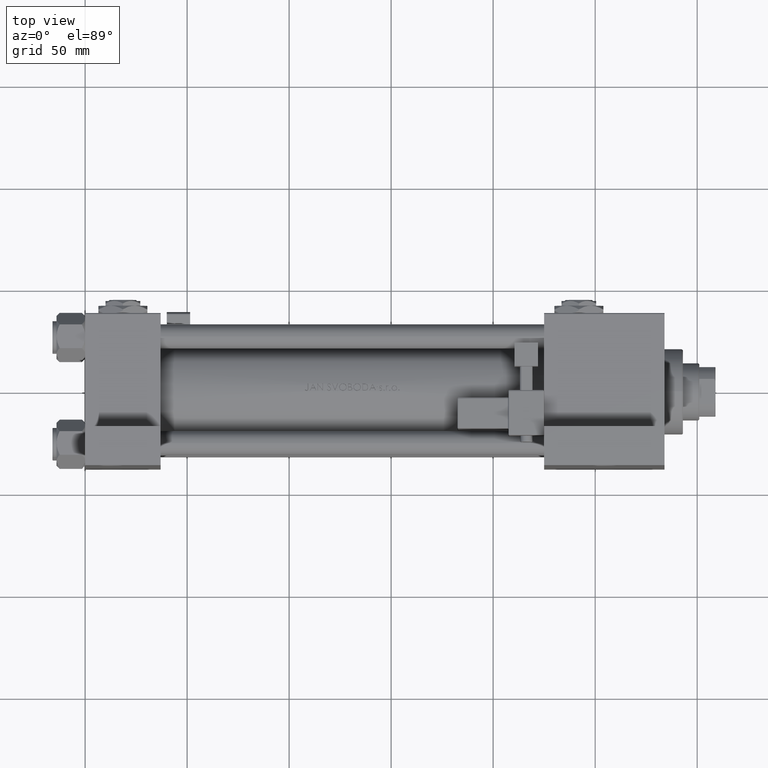
[diagram: clean part render]
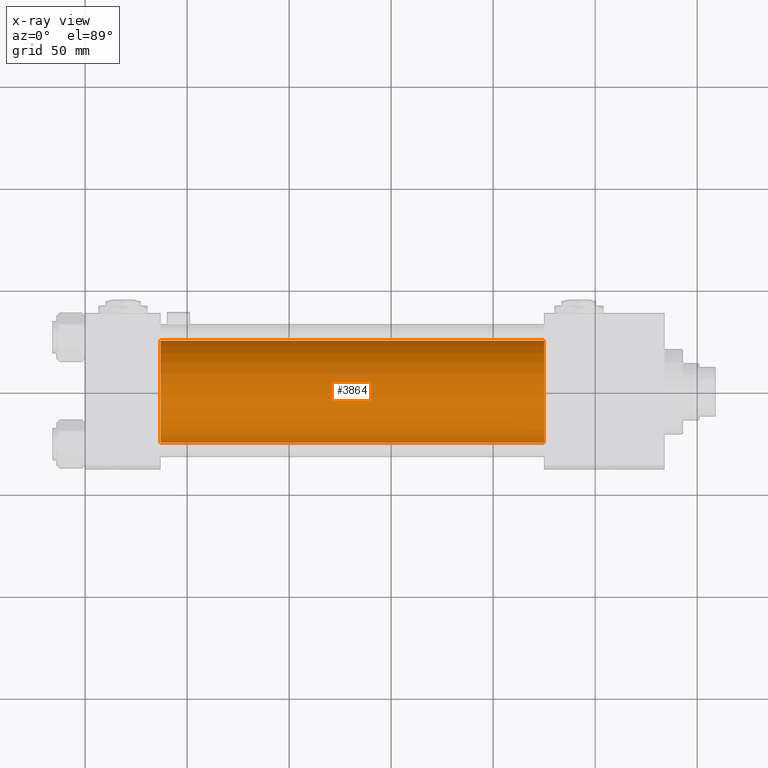
[diagram: x-ray — body ghosted, one internal face saturated and labeled with its STEP entity id]
A machine part, top view, then the same camera in x-ray: the body is ghosted and one INTERNAL B-rep face — a face not visible from any outside direction — is saturated and labeled: STEP entity #3864.
In plain terms, the highlighted cylindrical surface (partial cylindrical patch) has radius 25 mm, axis along (-1, -0, 0).
Its self-contained STEP definition (entity closure, byte-faithful):
#147 = DIRECTION ( 'NONE',  ( -1.000000000000000000, -0.000000000000000000, -0.000000000000000000 ) ) ;
#2550 = CIRCLE ( 'NONE', #31489, 25.00000000000000000 ) ;
#3864 = ADVANCED_FACE ( 'NONE', ( #28356 ), #31213, .F. ) ;
#4753 = VERTEX_POINT ( 'NONE', #13571 ) ;
#5477 = CARTESIAN_POINT ( 'NONE',  ( 225.0000000000000000, 0.000000000000000000, -0.5000000000000004441 ) ) ;
#6896 = VECTOR ( 'NONE', #36809, 1000.000000000000000 ) ;
#7778 = EDGE_CURVE ( 'NONE', #11656, #36439, #17606, .T. ) ;
#8599 = CARTESIAN_POINT ( 'NONE',  ( 225.0000000000000000, 0.000000000000000000, 24.50000000000000000 ) ) ;
#11656 = VERTEX_POINT ( 'NONE', #8599 ) ;
#11888 = CARTESIAN_POINT ( 'NONE',  ( 37.00000000000000000, 0.000000000000000000, -0.5000000000000004441 ) ) ;
#12127 = EDGE_CURVE ( 'NONE', #43550, #4753, #23759, .T. ) ;
#13571 = CARTESIAN_POINT ( 'NONE',  ( 37.00000000000000000, 3.061616997868383043E-15, -25.50000000000000355 ) ) ;
#14636 = EDGE_LOOP ( 'NONE', ( #37339, #42501, #21990, #43272 ) ) ;
#17606 = LINE ( 'NONE', #20977, #6896 ) ;
#17903 = DIRECTION ( 'NONE',  ( 1.000000000000000000, 0.000000000000000000, 0.000000000000000000 ) ) ;
#18652 = AXIS2_PLACEMENT_3D ( 'NONE', #11888, #35731, #20171 ) ;
#19837 = CARTESIAN_POINT ( 'NONE',  ( 225.0000000000000000, 3.061616997868383043E-15, -25.50000000000000355 ) ) ;
#20171 = DIRECTION ( 'NONE',  ( 0.000000000000000000, 0.000000000000000000, -1.000000000000000000 ) ) ;
#20977 = CARTESIAN_POINT ( 'NONE',  ( 225.0000000000000000, 0.000000000000000000, 24.50000000000000000 ) ) ;
#21990 = ORIENTED_EDGE ( 'NONE', *, *, #26611, .F. ) ;
#23759 = LINE ( 'NONE', #19837, #45101 ) ;
#23866 = CARTESIAN_POINT ( 'NONE',  ( 37.00000000000000000, 0.000000000000000000, 24.50000000000000000 ) ) ;
#26611 = EDGE_CURVE ( 'NONE', #36439, #4753, #31091, .T. ) ;
#28356 = FACE_OUTER_BOUND ( 'NONE', #14636, .T. ) ;
#31091 = CIRCLE ( 'NONE', #18652, 25.00000000000000000 ) ;
#31213 = CYLINDRICAL_SURFACE ( 'NONE', #32375, 25.00000000000000000 ) ;
#31489 = AXIS2_PLACEMENT_3D ( 'NONE', #5477, #17903, #41495 ) ;
#31706 = DIRECTION ( 'NONE',  ( -1.000000000000000000, -0.000000000000000000, -0.000000000000000000 ) ) ;
#32375 = AXIS2_PLACEMENT_3D ( 'NONE', #43362, #31706, #47495 ) ;
#35731 = DIRECTION ( 'NONE',  ( 1.000000000000000000, 0.000000000000000000, 0.000000000000000000 ) ) ;
#36439 = VERTEX_POINT ( 'NONE', #23866 ) ;
#36809 = DIRECTION ( 'NONE',  ( -1.000000000000000000, -0.000000000000000000, -0.000000000000000000 ) ) ;
#37339 = ORIENTED_EDGE ( 'NONE', *, *, #42181, .T. ) ;
#41495 = DIRECTION ( 'NONE',  ( 0.000000000000000000, 0.000000000000000000, -1.000000000000000000 ) ) ;
#42181 = EDGE_CURVE ( 'NONE', #11656, #43550, #2550, .T. ) ;
#42501 = ORIENTED_EDGE ( 'NONE', *, *, #12127, .T. ) ;
#42843 = CARTESIAN_POINT ( 'NONE',  ( 225.0000000000000000, 3.061616997868383043E-15, -25.50000000000000355 ) ) ;
#43272 = ORIENTED_EDGE ( 'NONE', *, *, #7778, .F. ) ;
#43362 = CARTESIAN_POINT ( 'NONE',  ( 225.0000000000000000, 0.000000000000000000, -0.5000000000000004441 ) ) ;
#43550 = VERTEX_POINT ( 'NONE', #42843 ) ;
#45101 = VECTOR ( 'NONE', #147, 1000.000000000000000 ) ;
#47495 = DIRECTION ( 'NONE',  ( 0.000000000000000000, 0.000000000000000000, 1.000000000000000000 ) ) ;